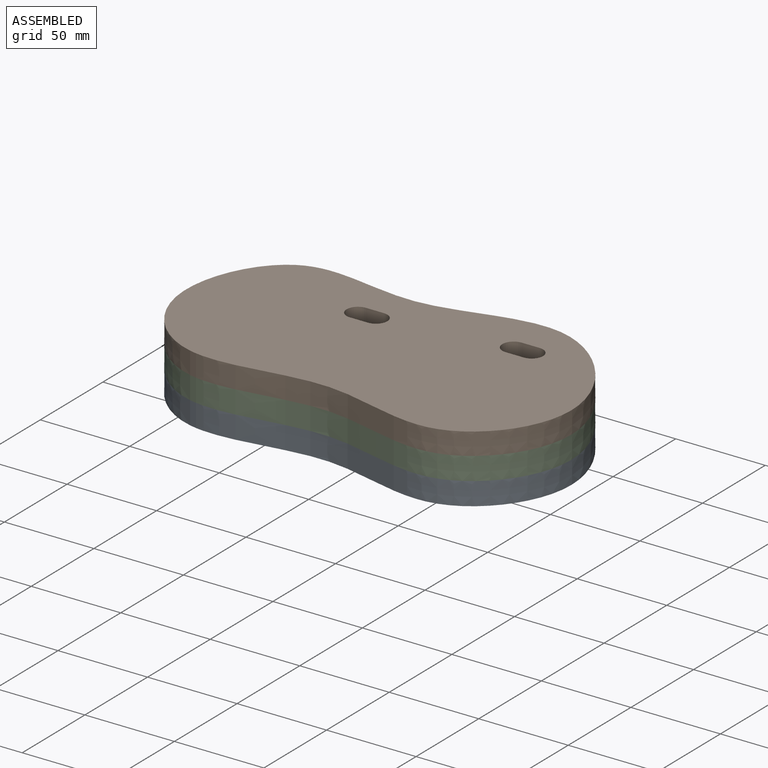
[diagram: assembled view]
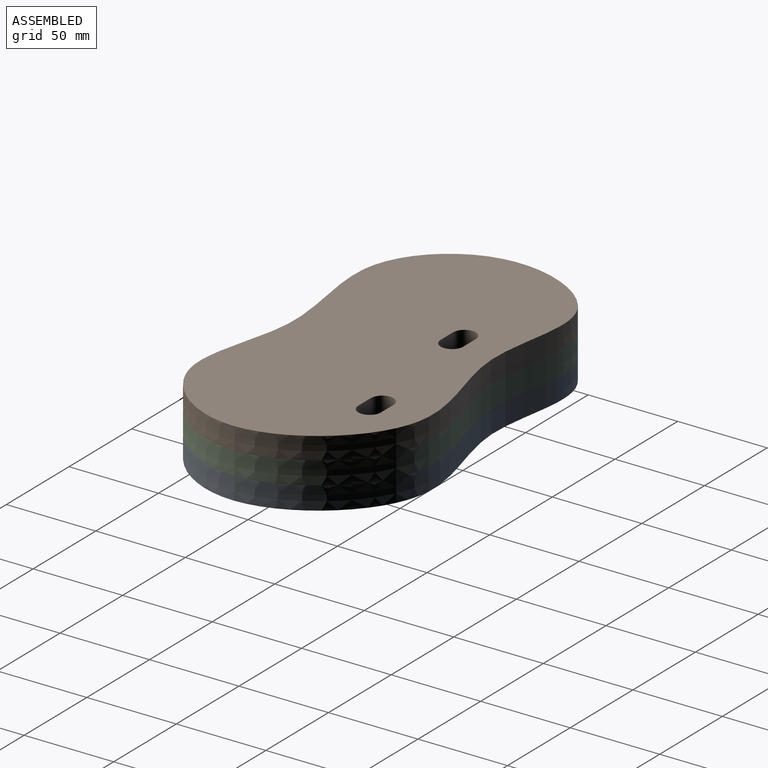
[diagram: assembled view, second angle]
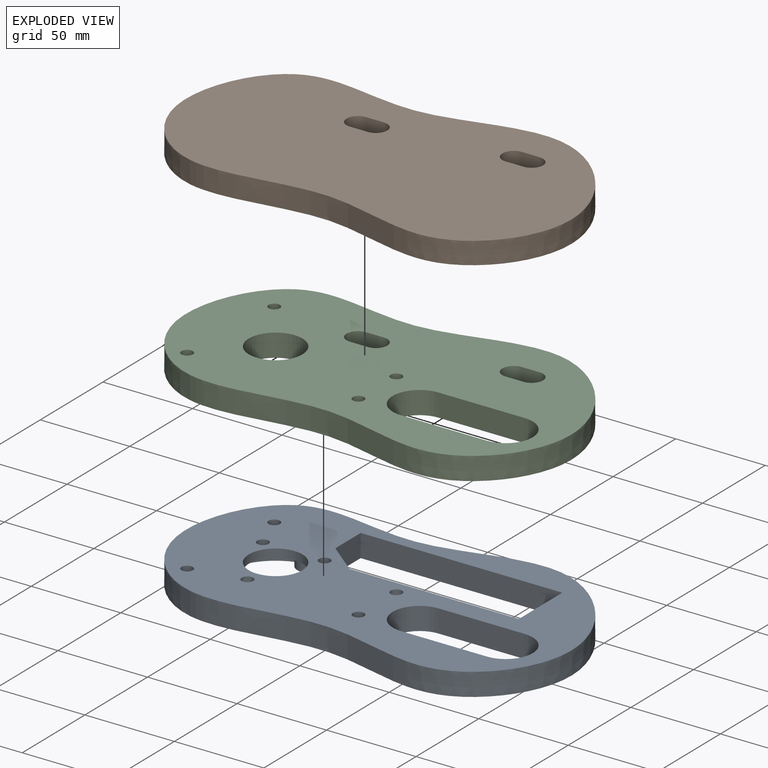
[diagram: exploded view]
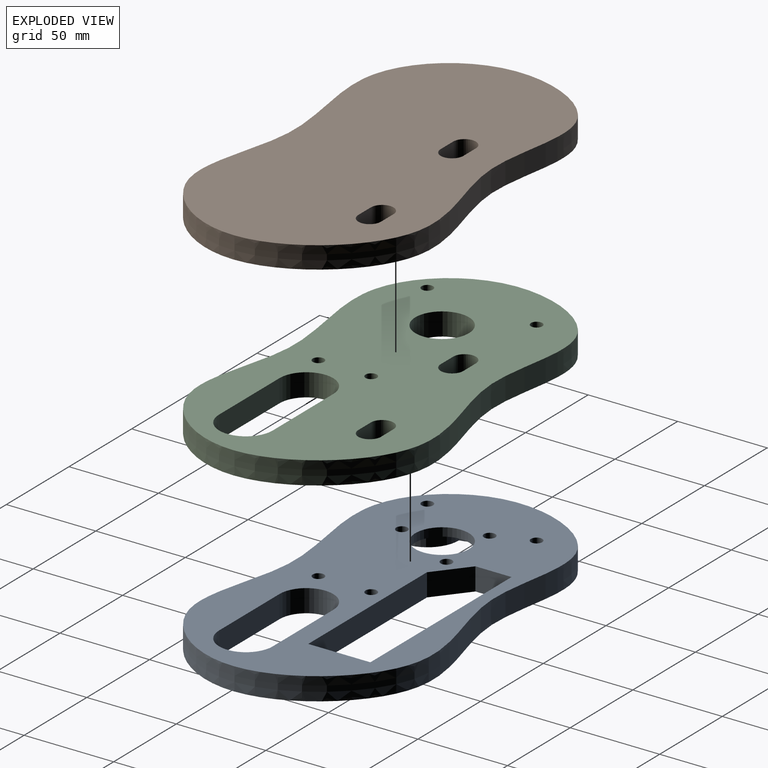
[diagram: exploded view, second angle]
ASSEMBLY  parts=3 mates=2
PART A: 27 faces, bbox 224.4x125.8x12.7 mm
  f0: plane 58x57.01mm, normal (0,0,-1), area 1474.7mm2, adj f2,f3,f5,f11,f21,f22,f23,f24
  f1: plane 224.35x125.82mm, normal (0,0,1), area 14791mm2, adj f5,f6,f7,f8,f9,f10,f12,f13
  f2: cylinder r=29mm len=37.81mm, axis (0,0,-1), area 383.7mm2, adj f0,f4,f22,f23
  f3: cylinder r=29mm len=19.59mm, axis (0,0,-1), area 159.9mm2, adj f0,f4,f21,f22
  f4: plane 224.35x125.82mm, normal (0,0,-1), area 13316.2mm2, adj f2,f3,f6,f7,f8,f9,f10,f11
  f5: cylinder r=15mm len=30mm, axis (0,0,1), area 443mm2, adj f0,f1
  f6: cylinder r=3.17mm len=12.7mm, axis (0,0,1), area 253.4mm2, adj f1,f4
  f7: cylinder r=3.17mm len=12.7mm, axis (0,0,1), area 253.4mm2, adj f1,f4
  f8: cylinder r=3.17mm len=12.7mm, axis (0,0,1), area 253.4mm2, adj f1,f4
  f9: cylinder r=3.17mm len=12.7mm, axis (0,0,1), area 253.4mm2, adj f1,f4
  f10: extruded ~219.54x120.34mm, area 7326mm2, adj f1,f4
  f11: cylinder r=29mm len=37.81mm, axis (0,0,-1), area 383.7mm2, adj f0,f4,f21,f23
  f12: plane 34.7x12.7mm, normal (-1,0,0), area 440.7mm2, adj f1,f4,f13,f16
  f13: plane 94.73x12.7mm, normal (0,1,0), area 1203mm2, adj f1,f4,f12,f14
  f14: plane 17.97x14.46mm, normal (0.63,0.78,0), area 293mm2, adj f1,f4,f13,f15
  f15: plane 20.24x12.7mm, normal (1,0,0), area 257mm2, adj f1,f4,f14,f16
  f16: plane 112.7x12.7mm, normal (0,-1,0), area 1431.3mm2, adj f1,f4,f12,f15
  f17: plane 48.2x12.7mm, normal (0,1,0), area 612.1mm2, adj f1,f4,f18,f19
  f18: cylinder r=15mm len=30mm, axis (0,0,-1), area 598.5mm2, adj f1,f4,f17,f20
  f19: cylinder r=15mm len=30mm, axis (0,0,-1), area 598.5mm2, adj f1,f4,f17,f20
  f20: plane 48.2x12.7mm, normal (0,-1,0), area 612.1mm2, adj f1,f4,f18,f19
  f21: cylinder r=17.5mm len=17.5mm, axis (0,0,1), area 219.9mm2, adj f0,f3,f4,f11
  f22: cylinder r=17.5mm len=17.5mm, axis (0,0,1), area 219.9mm2, adj f0,f2,f3,f4
  f23: cylinder r=7.5mm len=15mm, axis (0,0,1), area 188.5mm2, adj f0,f2,f4,f11
  f24: cylinder r=3.17mm len=6.35mm, axis (0,0,-1), area 93.8mm2, adj f0,f1
  f25: cylinder r=3.17mm len=6.35mm, axis (0,0,-1), area 93.8mm2, adj f0,f1
  f26: cylinder r=3.17mm len=6.35mm, axis (0,0,-1), area 93.8mm2, adj f0,f1
PART B: 26 faces, bbox 224.4x125.8x12.3 mm
  f0: plane 224.35x125.82mm, normal (0,0,-1), area 18159.4mm2, adj f2,f4,f5,f6,f7,f8,f9,f10
  f1: plane 224.35x125.82mm, normal (0,0,1), area 21145.7mm2, adj f2,f5,f6,f7,f8,f9,f10,f11
  f2: extruded ~219.54x120.34mm, area 7095.3mm2, adj f0,f1
  f3: plane 30x30mm, normal (0,0,-1), area 706.9mm2, adj f4
  f4: cylinder r=15mm len=30mm, axis (0,0,-1), area 1065mm2, adj f0,f3
  f5: plane 12.3x10mm, normal (0,1,0), area 123mm2, adj f0,f1,f6,f8
  f6: cylinder r=6.35mm len=12.7mm, axis (0,0,-1), area 245.4mm2, adj f0,f1,f5,f7
  f7: plane 12.3x10mm, normal (0,-1,0), area 123mm2, adj f0,f1,f6,f8
  f8: cylinder r=6.35mm len=12.7mm, axis (0,0,-1), area 245.4mm2, adj f0,f1,f5,f7
  f9: cylinder r=6.35mm len=12.7mm, axis (0,0,-1), area 245.4mm2, adj f0,f1,f10,f12
  f10: plane 12.3x10mm, normal (0,-1,0), area 123mm2, adj f0,f1,f9,f11
  f11: cylinder r=6.35mm len=12.7mm, axis (0,0,-1), area 245.4mm2, adj f0,f1,f10,f12
  f12: plane 12.3x10mm, normal (0,1,0), area 123mm2, adj f0,f1,f9,f11
  f13: plane 6.35x6.35mm, normal (0,0,-1), area 31.7mm2, adj f14
  f14: cylinder r=3.17mm len=10.3mm, axis (0,0,-1), area 205.5mm2, adj f0,f13
  f15: plane 6.35x6.35mm, normal (0,0,-1), area 31.7mm2, adj f16
  f16: cylinder r=3.17mm len=10.3mm, axis (0,0,-1), area 205.5mm2, adj f0,f15
  f17: plane 6.35x6.35mm, normal (0,0,-1), area 31.7mm2, adj f18
  f18: cylinder r=3.17mm len=10.3mm, axis (0,0,-1), area 205.5mm2, adj f0,f17
  f19: plane 6.35x6.35mm, normal (0,0,-1), area 31.7mm2, adj f20
  f20: cylinder r=3.17mm len=10.3mm, axis (0,0,-1), area 205.5mm2, adj f0,f19
  f21: plane 48.2x7.3mm, normal (0,1,0), area 351.8mm2, adj f0,f22,f23,f25
  f22: cylinder r=15mm len=30mm, axis (0,0,-1), area 344mm2, adj f0,f21,f24,f25
  f23: cylinder r=15mm len=30mm, axis (0,0,-1), area 344mm2, adj f0,f21,f24,f25
  f24: plane 48.2x7.3mm, normal (0,-1,0), area 351.8mm2, adj f0,f22,f23,f25
  f25: plane 78.2x30mm, normal (0,0,-1), area 2152.8mm2, adj f21,f22,f23,f24
PART C: 20 faces, bbox 224.4x125.8x12.7 mm
  f0: plane 224.35x125.82mm, normal (0,0,-1), area 18159.4mm2, adj f2,f3,f4,f5,f6,f7,f8,f9
  f1: plane 224.35x125.82mm, normal (0,0,1), area 18159.4mm2, adj f2,f3,f4,f5,f6,f7,f8,f9
  f2: cylinder r=6.35mm len=12.7mm, axis (0,0,1), area 253.4mm2, adj f0,f1,f3,f15
  f3: plane 12.7x10mm, normal (0,-1,0), area 127mm2, adj f0,f1,f2,f4
  f4: cylinder r=6.35mm len=12.7mm, axis (0,0,1), area 253.4mm2, adj f0,f1,f3,f15
  f5: cylinder r=6.35mm len=12.7mm, axis (0,0,1), area 253.4mm2, adj f0,f1,f6,f10
  f6: plane 12.7x10mm, normal (0,1,0), area 127mm2, adj f0,f1,f5,f7
  f7: cylinder r=6.35mm len=12.7mm, axis (0,0,1), area 253.4mm2, adj f0,f1,f6,f10
  f8: extruded ~219.54x120.34mm, area 7326mm2, adj f0,f1
  f9: cylinder r=15mm len=30mm, axis (0,0,1), area 1196.9mm2, adj f0,f1
  f10: plane 12.7x10mm, normal (0,-1,0), area 127mm2, adj f0,f1,f5,f7
  f11: cylinder r=3.17mm len=12.7mm, axis (0,0,1), area 253.4mm2, adj f0,f1
  f12: cylinder r=3.17mm len=12.7mm, axis (0,0,1), area 253.4mm2, adj f0,f1
  f13: cylinder r=3.17mm len=12.7mm, axis (0,0,1), area 253.4mm2, adj f0,f1
  f14: cylinder r=3.17mm len=12.7mm, axis (0,0,1), area 253.4mm2, adj f0,f1
  f15: plane 12.7x10mm, normal (0,1,0), area 127mm2, adj f0,f1,f2,f4
  f16: plane 48.2x12.7mm, normal (0,1,0), area 612.1mm2, adj f0,f1,f17,f18
  f17: cylinder r=15mm len=30mm, axis (0,0,-1), area 598.5mm2, adj f0,f1,f16,f19
  f18: cylinder r=15mm len=30mm, axis (0,0,-1), area 598.5mm2, adj f0,f1,f16,f19
  f19: plane 48.2x12.7mm, normal (0,-1,0), area 612.1mm2, adj f0,f1,f17,f18
PLACE A t=(-2.96,56.44,-110.7)mm
PLACE B t=(-2.96,56.44,-110.7)mm
PLACE C t=(-2.96,56.44,-110.7)mm
MATE fastened A.f2 <-> C.f9  axis (0,0,1) through (-2.96,56.44,-123.4)mm
MATE fastened B.f4 <-> C.f9  axis (0,0,-1) through (-2.96,56.44,-110.7)mm
